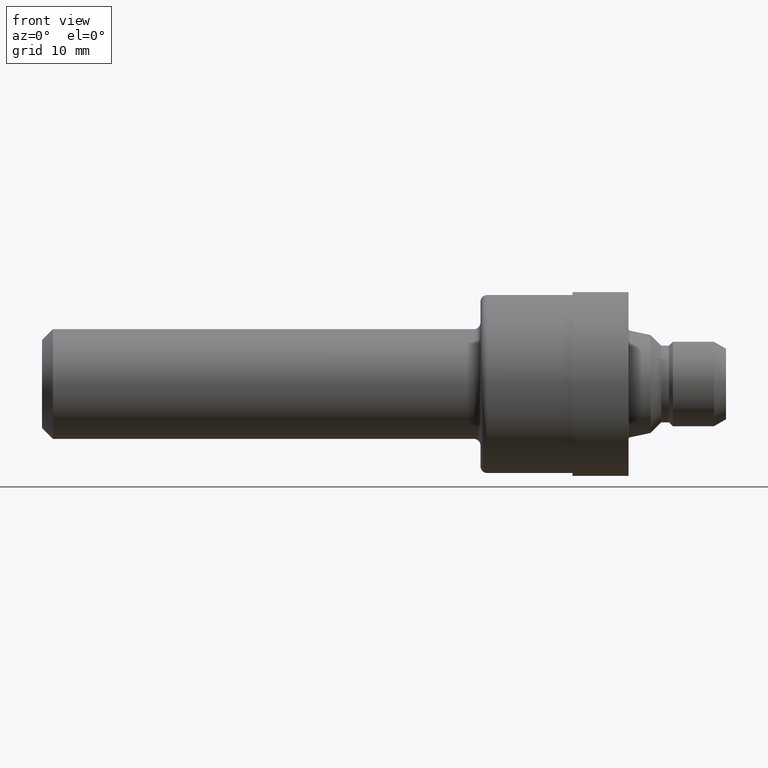
[diagram: clean part render]
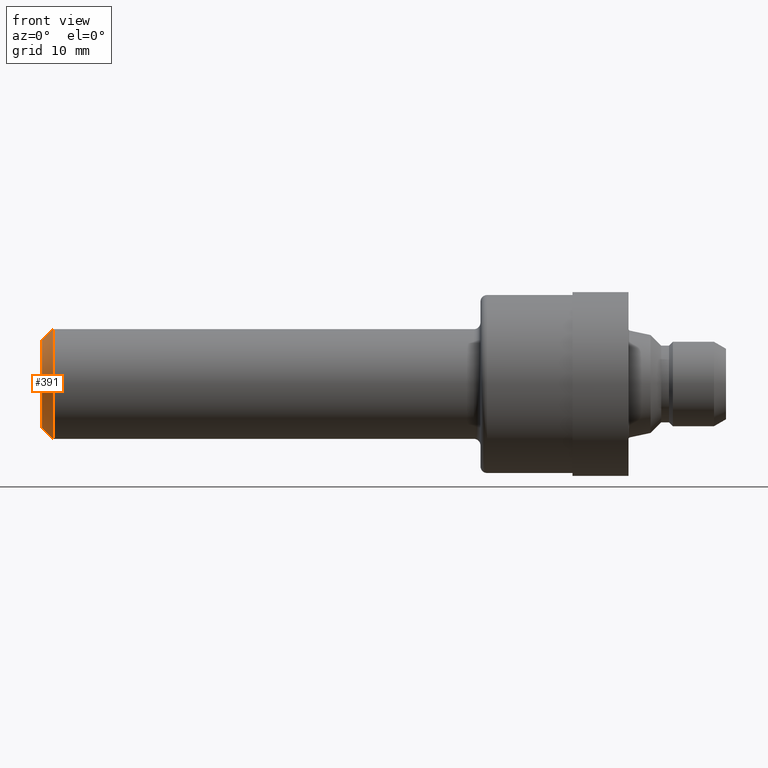
[diagram: same view with one face highlighted and labeled with its STEP entity id]
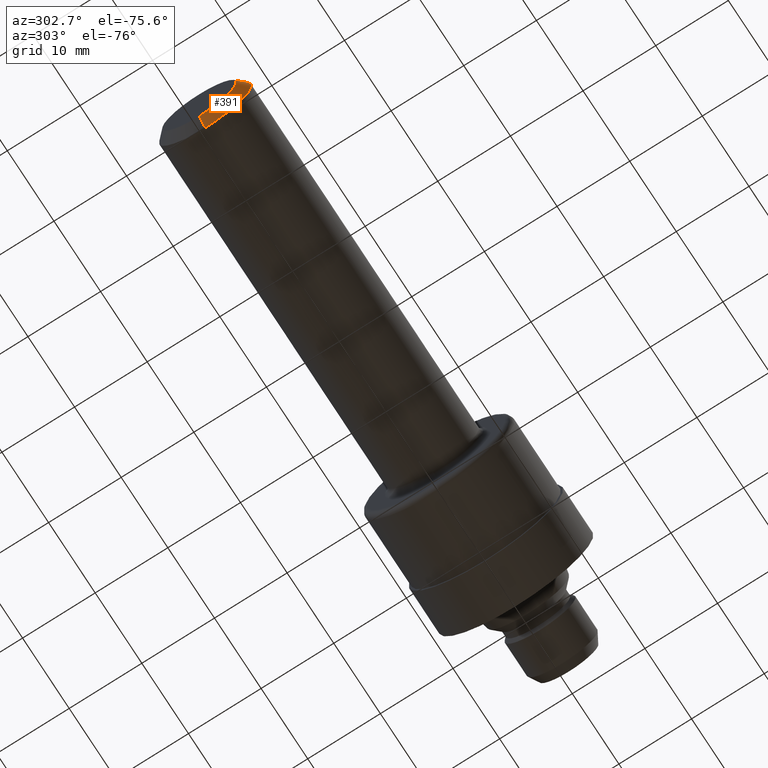
[diagram: same view with one face highlighted and labeled with its STEP entity id]
A machine part, front view. The second image highlights one B-rep face of the part: STEP entity #391.
A second angle (auxiliary view) of the same face is appended — the face is thin or edge-on in the first view.
In plain terms, the highlighted conical surface has half-angle 45 deg.
Its self-contained STEP definition (entity closure, byte-faithful):
#4 = CIRCLE ( 'NONE', #502, 0.2000000000000001776 ) ;
#10 = EDGE_LOOP ( 'NONE', ( #124, #440, #521, #709 ) ) ;
#16 = VERTEX_POINT ( 'NONE', #763 ) ;
#17 = CARTESIAN_POINT ( 'NONE',  ( 0.05000000000000000278, 3.061616997868383018E-17, -0.2500000000000000000 ) ) ;
#18 = VERTEX_POINT ( 'NONE', #723 ) ;
#45 = FACE_OUTER_BOUND ( 'NONE', #10, .T. ) ;
#57 = CARTESIAN_POINT ( 'NONE',  ( 0.05000000000000000278, 0.0000000000000000000, 0.0000000000000000000 ) ) ;
#58 = CARTESIAN_POINT ( 'NONE',  ( 0.05000000000000000278, 0.0000000000000000000, 0.0000000000000000000 ) ) ;
#84 = VERTEX_POINT ( 'NONE', #17 ) ;
#111 = CARTESIAN_POINT ( 'NONE',  ( 0.0000000000000000000, 0.0000000000000000000, 0.0000000000000000000 ) ) ;
#124 = ORIENTED_EDGE ( 'NONE', *, *, #830, .F. ) ;
#159 = LINE ( 'NONE', #266, #639 ) ;
#186 = EDGE_CURVE ( 'NONE', #84, #18, #750, .T. ) ;
#253 = EDGE_CURVE ( 'NONE', #16, #322, #4, .T. ) ;
#256 = DIRECTION ( 'NONE',  ( 0.0000000000000000000, 0.0000000000000000000, -1.000000000000000000 ) ) ;
#257 = VECTOR ( 'NONE', #762, 39.37007874015748143 ) ;
#266 = CARTESIAN_POINT ( 'NONE',  ( 0.05000000000000000278, 0.0000000000000000000, -0.2500000000000000000 ) ) ;
#292 = DIRECTION ( 'NONE',  ( 0.7071067811865489050, 0.0000000000000000000, -0.7071067811865461294 ) ) ;
#322 = VERTEX_POINT ( 'NONE', #378 ) ;
#378 = CARTESIAN_POINT ( 'NONE',  ( 0.0000000000000000000, 2.755455298081545702E-17, 0.2000000000000001776 ) ) ;
#391 = ADVANCED_FACE ( 'NONE', ( #45 ), #527, .T. ) ;
#407 = AXIS2_PLACEMENT_3D ( 'NONE', #58, #431, #256 ) ;
#431 = DIRECTION ( 'NONE',  ( 1.000000000000000000, 0.0000000000000000000, 0.0000000000000000000 ) ) ;
#440 = ORIENTED_EDGE ( 'NONE', *, *, #253, .F. ) ;
#471 = DIRECTION ( 'NONE',  ( 0.0000000000000000000, 0.0000000000000000000, 1.000000000000000000 ) ) ;
#502 = AXIS2_PLACEMENT_3D ( 'NONE', #111, #591, #570 ) ;
#506 = EDGE_CURVE ( 'NONE', #16, #84, #159, .T. ) ;
#521 = ORIENTED_EDGE ( 'NONE', *, *, #506, .T. ) ;
#527 = CONICAL_SURFACE ( 'NONE', #407, 0.2500000000000000000, 0.7853981633974463916 ) ;
#533 = AXIS2_PLACEMENT_3D ( 'NONE', #57, #607, #471 ) ;
#570 = DIRECTION ( 'NONE',  ( 0.0000000000000000000, 0.0000000000000000000, 1.000000000000000000 ) ) ;
#591 = DIRECTION ( 'NONE',  ( -1.000000000000000000, -0.0000000000000000000, -0.0000000000000000000 ) ) ;
#607 = DIRECTION ( 'NONE',  ( -1.000000000000000000, -0.0000000000000000000, -0.0000000000000000000 ) ) ;
#639 = VECTOR ( 'NONE', #292, 39.37007874015748143 ) ;
#660 = LINE ( 'NONE', #743, #257 ) ;
#709 = ORIENTED_EDGE ( 'NONE', *, *, #186, .T. ) ;
#723 = CARTESIAN_POINT ( 'NONE',  ( 0.05000000000000000278, 0.0000000000000000000, 0.2500000000000000000 ) ) ;
#743 = CARTESIAN_POINT ( 'NONE',  ( 0.05000000000000000278, 3.061616997868383018E-17, 0.2500000000000000000 ) ) ;
#750 = CIRCLE ( 'NONE', #533, 0.2500000000000000000 ) ;
#762 = DIRECTION ( 'NONE',  ( 0.7071067811865489050, 8.659560562354915602E-17, 0.7071067811865461294 ) ) ;
#763 = CARTESIAN_POINT ( 'NONE',  ( 0.0000000000000000000, 0.0000000000000000000, -0.2000000000000001776 ) ) ;
#830 = EDGE_CURVE ( 'NONE', #322, #18, #660, .T. ) ;